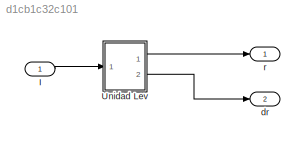
MODEL slx_d1cb1c32c101
KIND model
CONFIG AbsTol = auto
CONFIG EnableMultiTasking = off
CONFIG FixedStep = T
CONFIG MaxStep = auto
CONFIG MinStep = auto
CONFIG RelTol = 1e-3
CONFIG SampleTimeConstraint = Unconstrained
CONFIG Solver = VariableStepAuto
CONFIG SolverName = VariableStepAuto
CONFIG StartTime = 0.0
CONFIG StopTime = 5
BLOCK [Inport] I
  IconDisplay = Port number
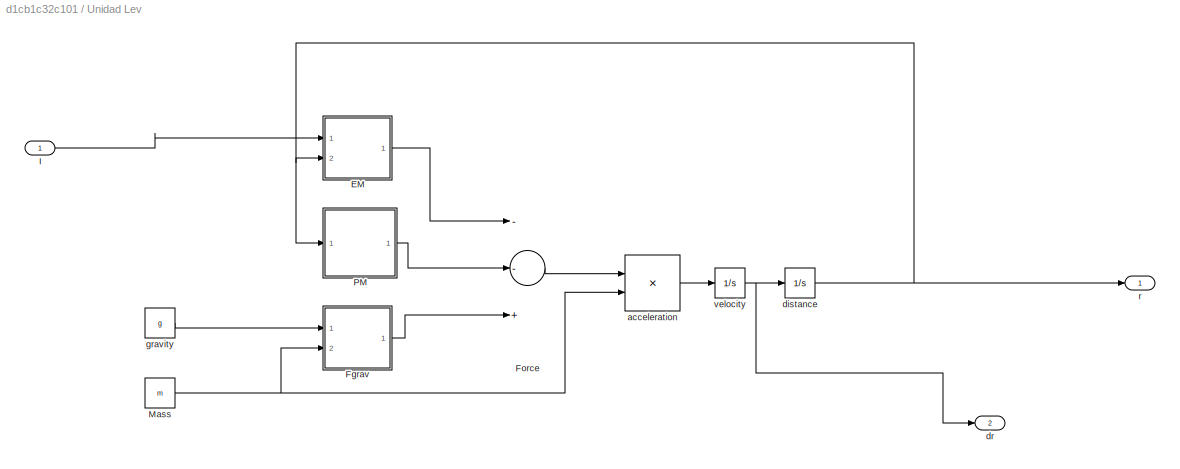
BLOCK [SubSystem] Unidad Lev
  Ports = [1, 2]
  RequestExecContextInheritance = off
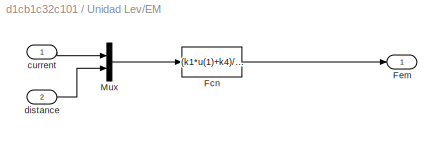
BLOCK [SubSystem] Unidad Lev/EM
  Ports = [2, 1]
  RequestExecContextInheritance = off
BLOCK [Fcn] Unidad Lev/EM/Fcn
  Expr = (k1*u(1)+k4)/(u(2)*k3-k2)^2
BLOCK [Outport] Unidad Lev/EM/Fem
  IconDisplay = Port number
  VectorParamsAs1DForOutWhenUnconnected = off
BLOCK [Mux] Unidad Lev/EM/Mux
  DisplayOption = bar
  Inputs = 2
  Ports = [2, 1]
BLOCK [Inport] Unidad Lev/EM/current
  IconDisplay = Port number
BLOCK [Inport] Unidad Lev/EM/distance
  IconDisplay = Port number
  Port = 2
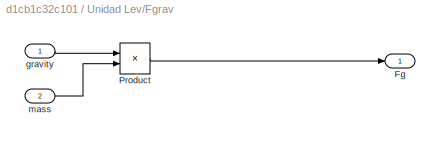
BLOCK [SubSystem] Unidad Lev/Fgrav
  Ports = [2, 1]
  RequestExecContextInheritance = off
BLOCK [Outport] Unidad Lev/Fgrav/Fg
  IconDisplay = Port number
  VectorParamsAs1DForOutWhenUnconnected = off
BLOCK [Product] Unidad Lev/Fgrav/Product
  InputSameDT = off
  OutDataTypeStr = Inherit: Inherit via internal rule
  Ports = [2, 1]
  RndMeth = Floor
  SaturateOnIntegerOverflow = off
BLOCK [Inport] Unidad Lev/Fgrav/gravity
  IconDisplay = Port number
BLOCK [Inport] Unidad Lev/Fgrav/mass
  IconDisplay = Port number
  Port = 2
BLOCK [Sum] Unidad Lev/Force
  InputSameDT = off
  Inputs = --+
  OutDataTypeStr = Inherit: Inherit via internal rule
  Ports = [3, 1]
  SaturateOnIntegerOverflow = off
BLOCK [Inport] Unidad Lev/I
  IconDisplay = Port number
BLOCK [Constant] Unidad Lev/Mass
  Value = m
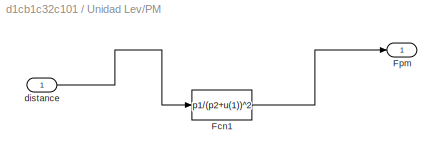
BLOCK [SubSystem] Unidad Lev/PM
  Ports = [1, 1]
  RequestExecContextInheritance = off
BLOCK [Fcn] Unidad Lev/PM/Fcn1
  Expr = p1/(p2+u(1))^2
BLOCK [Outport] Unidad Lev/PM/Fpm
  IconDisplay = Port number
  VectorParamsAs1DForOutWhenUnconnected = off
BLOCK [Inport] Unidad Lev/PM/distance
  IconDisplay = Port number
BLOCK [Product] Unidad Lev/acceleration
  InputSameDT = off
  Inputs = */
  OutDataTypeStr = Inherit: Inherit via internal rule
  Ports = [2, 1]
  RndMeth = Floor
  SaturateOnIntegerOverflow = off
BLOCK [Integrator] Unidad Lev/distance
  InitialCondition = z0
  Ports = [1, 1]
BLOCK [Outport] Unidad Lev/dr
  IconDisplay = Port number
  Port = 2
  VectorParamsAs1DForOutWhenUnconnected = off
BLOCK [Constant] Unidad Lev/gravity
  Value = g
BLOCK [Outport] Unidad Lev/r
  IconDisplay = Port number
  VectorParamsAs1DForOutWhenUnconnected = off
BLOCK [Integrator] Unidad Lev/velocity
  Ports = [1, 1]
BLOCK [Outport] dr
  IconDisplay = Port number
  Port = 2
  VectorParamsAs1DForOutWhenUnconnected = off
BLOCK [Outport] r
  IconDisplay = Port number
  VectorParamsAs1DForOutWhenUnconnected = off
LINE I:1 -> Unidad Lev:1
LINE Unidad Lev/EM/Fcn:1 -> Unidad Lev/EM/Fem:1
LINE Unidad Lev/EM/Mux:1 -> Unidad Lev/EM/Fcn:1
LINE Unidad Lev/EM/current:1 -> Unidad Lev/EM/Mux:1
LINE Unidad Lev/EM/distance:1 -> Unidad Lev/EM/Mux:2
LINE Unidad Lev/EM:1 -> Unidad Lev/Force:1
LINE Unidad Lev/Fgrav/Product:1 -> Unidad Lev/Fgrav/Fg:1
LINE Unidad Lev/Fgrav/gravity:1 -> Unidad Lev/Fgrav/Product:1
LINE Unidad Lev/Fgrav/mass:1 -> Unidad Lev/Fgrav/Product:2
LINE Unidad Lev/Fgrav:1 -> Unidad Lev/Force:3
LINE Unidad Lev/Force:1 -> Unidad Lev/acceleration:1
LINE Unidad Lev/I:1 -> Unidad Lev/EM:1
NET Unidad Lev/Mass:1 -> Unidad Lev/Fgrav:2, Unidad Lev/acceleration:2
LINE Unidad Lev/PM/Fcn1:1 -> Unidad Lev/PM/Fpm:1
LINE Unidad Lev/PM/distance:1 -> Unidad Lev/PM/Fcn1:1
LINE Unidad Lev/PM:1 -> Unidad Lev/Force:2
LINE Unidad Lev/acceleration:1 -> Unidad Lev/velocity:1
NET Unidad Lev/distance:1 -> Unidad Lev/EM:2, Unidad Lev/PM:1, Unidad Lev/r:1
LINE Unidad Lev/gravity:1 -> Unidad Lev/Fgrav:1
NET Unidad Lev/velocity:1 -> Unidad Lev/distance:1, Unidad Lev/dr:1
LINE Unidad Lev:1 -> r:1
LINE Unidad Lev:2 -> dr:1
note: NET lines group one-source signal fan-out (src -> all destinations, sorted); 1:1 wires keep LINE
